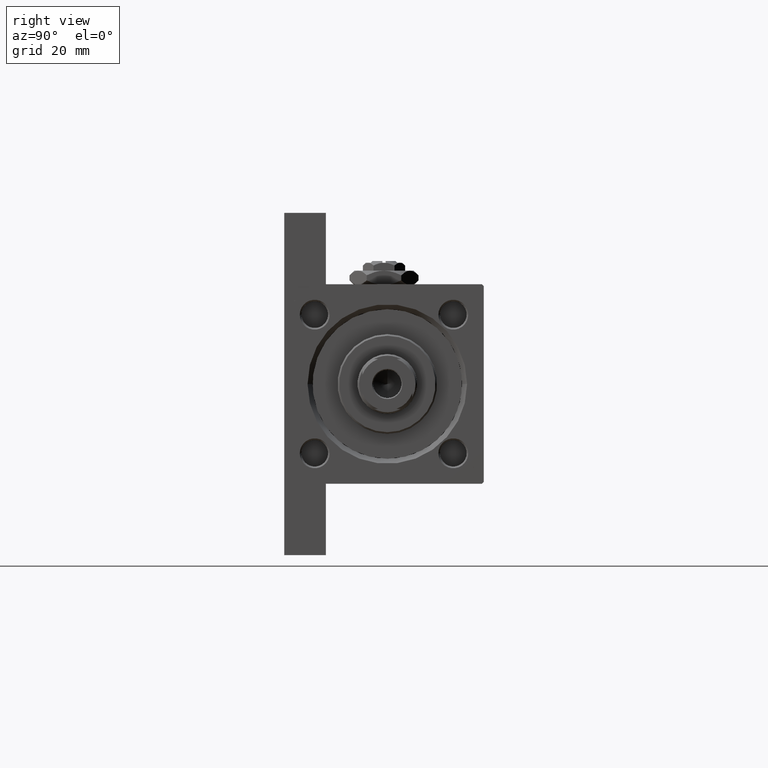
[diagram: clean part render]
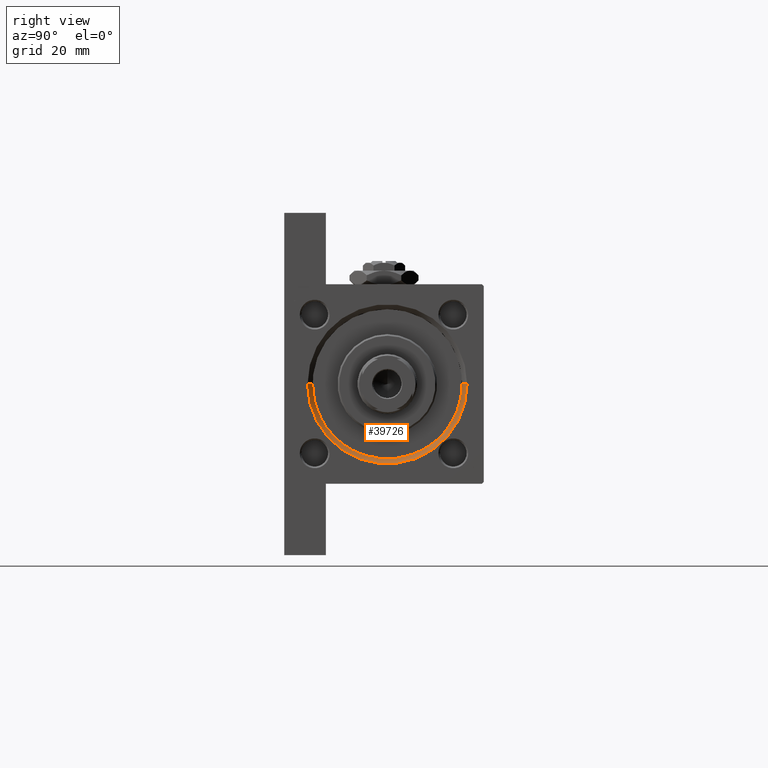
[diagram: same view with one face highlighted and labeled with its STEP entity id]
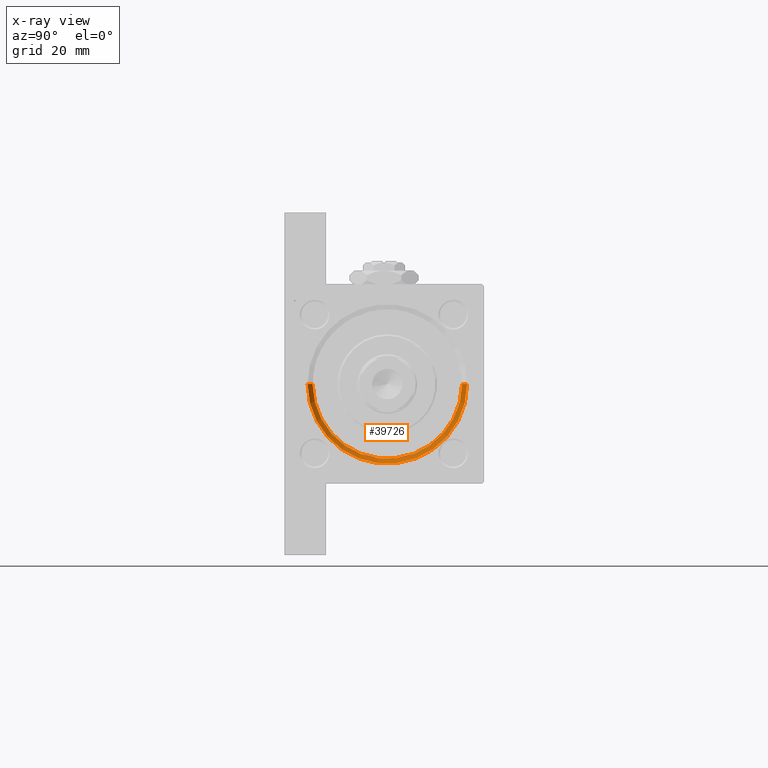
[diagram: x-ray of the same camera — body ghosted, the highlighted face saturated]
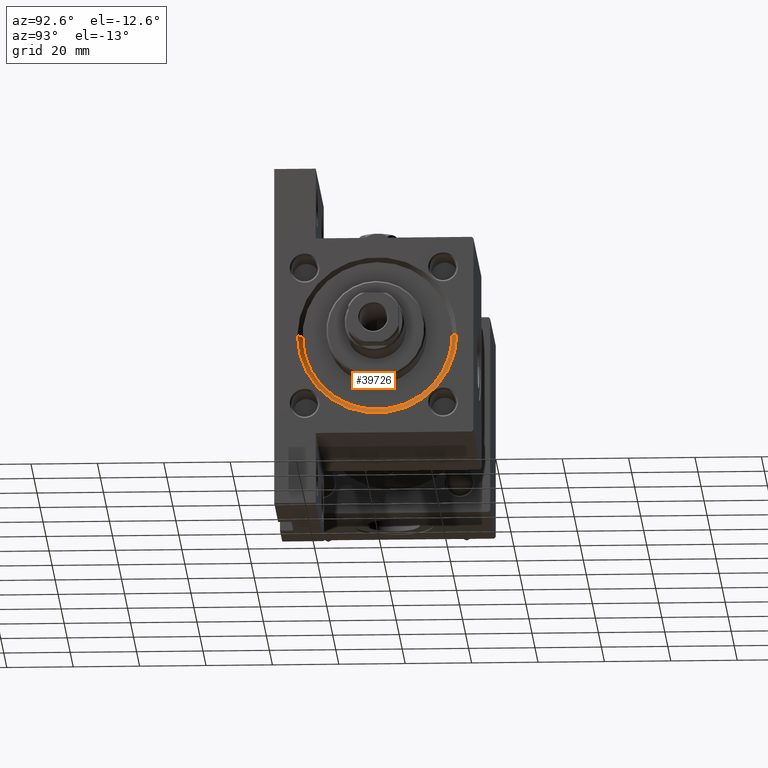
[diagram: same view with one face highlighted and labeled with its STEP entity id]
A machine part, right view. The second image highlights one B-rep face of the part: STEP entity #39726.
The next image is the same camera in x-ray: the body ghosted, the highlighted face saturated — about 0% of this face is hidden behind the body in this view.
A second angle (auxiliary view) of the same face is appended — the face is thin or edge-on in the first view.
In plain terms, the highlighted conical surface has half-angle 45 deg.
Its self-contained STEP definition (entity closure, byte-faithful):
#777 = CARTESIAN_POINT ( 'NONE',  ( 146.4999999999999432, 2.755455298081545172E-15, 23.50000000000001066 ) ) ;
#1338 = DIRECTION ( 'NONE',  ( -1.000000000000000000, 0.000000000000000000, -0.000000000000000000 ) ) ;
#2230 = EDGE_LOOP ( 'NONE', ( #20841, #6731, #50033, #19504 ) ) ;
#5211 = VECTOR ( 'NONE', #16446, 1000.000000000000000 ) ;
#5691 = DIRECTION ( 'NONE',  ( 0.000000000000000000, 0.000000000000000000, -1.000000000000000000 ) ) ;
#6731 = ORIENTED_EDGE ( 'NONE', *, *, #6925, .F. ) ;
#6925 = EDGE_CURVE ( 'NONE', #49706, #44197, #42467, .T. ) ;
#8446 = VECTOR ( 'NONE', #43251, 1000.000000000000000 ) ;
#11110 = AXIS2_PLACEMENT_3D ( 'NONE', #47308, #1338, #43711 ) ;
#11199 = DIRECTION ( 'NONE',  ( 0.000000000000000000, 0.000000000000000000, 1.000000000000000000 ) ) ;
#12200 = CARTESIAN_POINT ( 'NONE',  ( 146.4999999999999432, 0.000000000000000000, -21.49999999999999645 ) ) ;
#13776 = AXIS2_PLACEMENT_3D ( 'NONE', #42257, #23015, #11199 ) ;
#14949 = VERTEX_POINT ( 'NONE', #27988 ) ;
#16446 = DIRECTION ( 'NONE',  ( 0.7071067811865524577, 8.659560562354874926E-17, 0.7071067811865426878 ) ) ;
#19271 = CARTESIAN_POINT ( 'NONE',  ( 146.4999999999999432, 2.755455298081545172E-15, 23.50000000000001066 ) ) ;
#19504 = ORIENTED_EDGE ( 'NONE', *, *, #35053, .F. ) ;
#20049 = LINE ( 'NONE', #777, #5211 ) ;
#20841 = ORIENTED_EDGE ( 'NONE', *, *, #30229, .F. ) ;
#23015 = DIRECTION ( 'NONE',  ( 1.000000000000000000, 0.000000000000000000, 0.000000000000000000 ) ) ;
#27572 = AXIS2_PLACEMENT_3D ( 'NONE', #48560, #33142, #5691 ) ;
#27988 = CARTESIAN_POINT ( 'NONE',  ( 148.0000000000000000, 2.939152317953652628E-15, 25.00000000000004619 ) ) ;
#28107 = LINE ( 'NONE', #12200, #8446 ) ;
#28836 = EDGE_CURVE ( 'NONE', #49706, #34345, #28107, .T. ) ;
#30229 = EDGE_CURVE ( 'NONE', #44197, #14949, #20049, .T. ) ;
#33142 = DIRECTION ( 'NONE',  ( 1.000000000000000000, 0.000000000000000000, 0.000000000000000000 ) ) ;
#33387 = FACE_OUTER_BOUND ( 'NONE', #2230, .T. ) ;
#34345 = VERTEX_POINT ( 'NONE', #42397 ) ;
#35053 = EDGE_CURVE ( 'NONE', #14949, #34345, #44711, .T. ) ;
#39726 = ADVANCED_FACE ( 'NONE', ( #33387 ), #43972, .F. ) ;
#40402 = CARTESIAN_POINT ( 'NONE',  ( 146.4999999999999432, 0.000000000000000000, -21.49999999999999645 ) ) ;
#42257 = CARTESIAN_POINT ( 'NONE',  ( 146.4999999999999432, 0.000000000000000000, 1.000000000000007772 ) ) ;
#42397 = CARTESIAN_POINT ( 'NONE',  ( 148.0000000000000000, 0.000000000000000000, -23.00000000000003197 ) ) ;
#42467 = CIRCLE ( 'NONE', #13776, 22.50000000000000355 ) ;
#43251 = DIRECTION ( 'NONE',  ( 0.7071067811865524577, 0.000000000000000000, -0.7071067811865426878 ) ) ;
#43711 = DIRECTION ( 'NONE',  ( 0.000000000000000000, 0.000000000000000000, 1.000000000000000000 ) ) ;
#43972 = CONICAL_SURFACE ( 'NONE', #27572, 22.50000000000000355, 0.7853981633974415066 ) ;
#44197 = VERTEX_POINT ( 'NONE', #19271 ) ;
#44711 = CIRCLE ( 'NONE', #11110, 24.00000000000003908 ) ;
#47308 = CARTESIAN_POINT ( 'NONE',  ( 148.0000000000000000, 0.000000000000000000, 1.000000000000007772 ) ) ;
#48560 = CARTESIAN_POINT ( 'NONE',  ( 146.4999999999999432, 0.000000000000000000, 1.000000000000007772 ) ) ;
#49706 = VERTEX_POINT ( 'NONE', #40402 ) ;
#50033 = ORIENTED_EDGE ( 'NONE', *, *, #28836, .T. ) ;